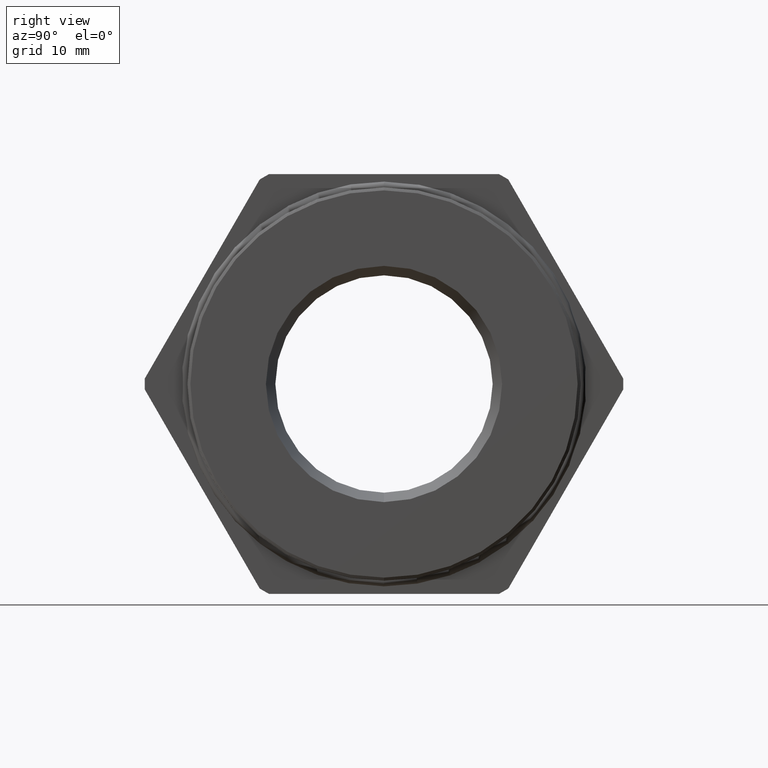
[diagram: clean part render]
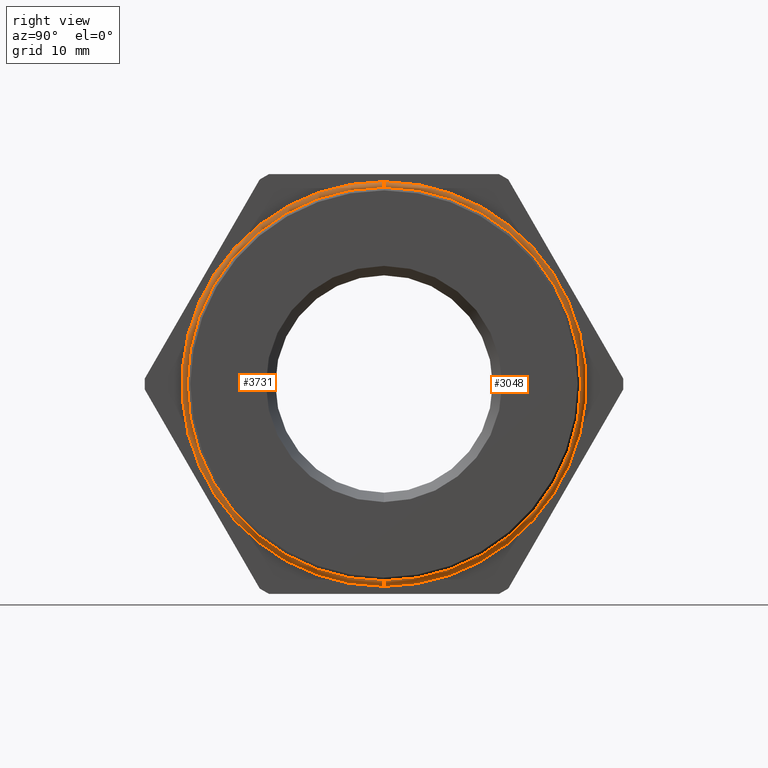
[diagram: same view with one multi-face feature highlighted, each face labeled with its STEP entity id]
A machine part, right view. The highlighted faces form ONE feature: a constant-radius fillet chain: 2 tangent blend faces with common blend radius 0.635 mm. The faces share edges in the B-rep.
Their STEP definitions:
[1] entity #3731 (Torus):
#563 = CARTESIAN_POINT ( 'NONE',  ( 0.5349999999999998100, 1.161548037695647600E-016, 0.9484759511921008200 ) ) ;
#644 = CIRCLE ( 'NONE', #705, 0.02500000000000014400 ) ;
#645 = CARTESIAN_POINT ( 'NONE',  ( 0.5655820920326152200, 1.119406062949036500E-016, -0.9140644173719398900 ) ) ;
#702 = DIRECTION ( 'NONE',  ( 0.0000000000000000000, 0.0000000000000000000, -1.000000000000000000 ) ) ;
#703 = DIRECTION ( 'NONE',  ( 0.0000000000000000000, -1.000000000000000000, 0.0000000000000000000 ) ) ;
#704 = CARTESIAN_POINT ( 'NONE',  ( 0.5429999999999998200, 0.0000000000000000000, -0.9247905126274468300 ) ) ;
#705 = AXIS2_PLACEMENT_3D ( 'NONE', #704, #703, #702 ) ;
#1391 = DIRECTION ( 'NONE',  ( 0.0000000000000000000, 0.0000000000000000000, -1.000000000000000000 ) ) ;
#1392 = DIRECTION ( 'NONE',  ( 1.000000000000000000, 0.0000000000000000000, 0.0000000000000000000 ) ) ;
#1393 = CARTESIAN_POINT ( 'NONE',  ( 0.5429999999999998200, 0.0000000000000000000, 0.0000000000000000000 ) ) ;
#1394 = AXIS2_PLACEMENT_3D ( 'NONE', #1393, #1392, #1391 ) ;
#1395 = TOROIDAL_SURFACE ( 'NONE', #1394, 0.9247905126274468300, 0.02500000000000011200 ) ;
#1396 = FACE_OUTER_BOUND ( 'NONE', #3730, .T. ) ;
#1984 = CARTESIAN_POINT ( 'NONE',  ( 0.5655820920326152200, 0.0000000000000000000, 0.9140644173719398900 ) ) ;
#1985 = DIRECTION ( 'NONE',  ( 0.0000000000000000000, 1.224646799147351000E-016, 1.000000000000000000 ) ) ;
#1986 = DIRECTION ( 'NONE',  ( 0.0000000000000000000, 1.000000000000000000, -1.224646799147353200E-016 ) ) ;
#1987 = CARTESIAN_POINT ( 'NONE',  ( 0.5429999999999998200, 1.132541741171042700E-016, 0.9247905126274468300 ) ) ;
#1988 = AXIS2_PLACEMENT_3D ( 'NONE', #1987, #1986, #1985 ) ;
#1989 = CIRCLE ( 'NONE', #1988, 0.02500000000000014400 ) ;
#1990 = CARTESIAN_POINT ( 'NONE',  ( 0.5349999999999998100, 0.0000000000000000000, -0.9484759511921008200 ) ) ;
#2426 = DIRECTION ( 'NONE',  ( 0.0000000000000000000, 0.0000000000000000000, 1.000000000000000000 ) ) ;
#2427 = DIRECTION ( 'NONE',  ( -1.000000000000000000, 0.0000000000000000000, 0.0000000000000000000 ) ) ;
#2428 = CARTESIAN_POINT ( 'NONE',  ( 0.5655820920326152200, 0.0000000000000000000, 0.0000000000000000000 ) ) ;
#2429 = AXIS2_PLACEMENT_3D ( 'NONE', #2428, #2427, #2426 ) ;
#2430 = CIRCLE ( 'NONE', #2429, 0.9140644173719398900 ) ;
#2513 = AXIS2_PLACEMENT_3D ( 'NONE', #2519, #2575, #2574 ) ;
#2514 = CIRCLE ( 'NONE', #2513, 0.9484759511921008200 ) ;
#2519 = CARTESIAN_POINT ( 'NONE',  ( 0.5349999999999998100, 0.0000000000000000000, 0.0000000000000000000 ) ) ;
#2574 = DIRECTION ( 'NONE',  ( 0.0000000000000000000, 0.0000000000000000000, 1.000000000000000000 ) ) ;
#2575 = DIRECTION ( 'NONE',  ( -1.000000000000000000, 0.0000000000000000000, 0.0000000000000000000 ) ) ;
#3052 = VERTEX_POINT ( 'NONE', #563 ) ;
#3108 = VERTEX_POINT ( 'NONE', #645 ) ;
#3110 = EDGE_CURVE ( 'NONE', #4094, #3108, #644, .T. ) ;
#3726 = ORIENTED_EDGE ( 'NONE', *, *, #4390, .F. ) ;
#3727 = ORIENTED_EDGE ( 'NONE', *, *, #3110, .T. ) ;
#3728 = ORIENTED_EDGE ( 'NONE', *, *, #4323, .T. ) ;
#3729 = ORIENTED_EDGE ( 'NONE', *, *, #4095, .F. ) ;
#3730 = EDGE_LOOP ( 'NONE', ( #3729, #3726, #3727, #3728 ) ) ;
#3731 = ADVANCED_FACE ( 'NONE', ( #1396 ), #1395, .T. ) ;
#4094 = VERTEX_POINT ( 'NONE', #1990 ) ;
#4095 = EDGE_CURVE ( 'NONE', #3052, #4098, #1989, .T. ) ;
#4098 = VERTEX_POINT ( 'NONE', #1984 ) ;
#4323 = EDGE_CURVE ( 'NONE', #3108, #4098, #2430, .T. ) ;
#4390 = EDGE_CURVE ( 'NONE', #4094, #3052, #2514, .T. ) ;
[2] entity #3048 (Torus):
#563 = CARTESIAN_POINT ( 'NONE',  ( 0.5349999999999998100, 1.161548037695647600E-016, 0.9484759511921008200 ) ) ;
#564 = DIRECTION ( 'NONE',  ( 0.0000000000000000000, 0.0000000000000000000, 1.000000000000000000 ) ) ;
#565 = DIRECTION ( 'NONE',  ( -1.000000000000000000, 0.0000000000000000000, 0.0000000000000000000 ) ) ;
#566 = CARTESIAN_POINT ( 'NONE',  ( 0.5349999999999998100, 0.0000000000000000000, 0.0000000000000000000 ) ) ;
#567 = AXIS2_PLACEMENT_3D ( 'NONE', #566, #565, #564 ) ;
#568 = CIRCLE ( 'NONE', #567, 0.9484759511921008200 ) ;
#569 = DIRECTION ( 'NONE',  ( 0.0000000000000000000, 0.0000000000000000000, -1.000000000000000000 ) ) ;
#570 = DIRECTION ( 'NONE',  ( 1.000000000000000000, 0.0000000000000000000, 0.0000000000000000000 ) ) ;
#571 = AXIS2_PLACEMENT_3D ( 'NONE', #573, #570, #569 ) ;
#572 = TOROIDAL_SURFACE ( 'NONE', #571, 0.9247905126274468300, 0.02500000000000011200 ) ;
#573 = CARTESIAN_POINT ( 'NONE',  ( 0.5429999999999998200, 0.0000000000000000000, 0.0000000000000000000 ) ) ;
#574 = FACE_OUTER_BOUND ( 'NONE', #3049, .T. ) ;
#644 = CIRCLE ( 'NONE', #705, 0.02500000000000014400 ) ;
#645 = CARTESIAN_POINT ( 'NONE',  ( 0.5655820920326152200, 1.119406062949036500E-016, -0.9140644173719398900 ) ) ;
#646 = DIRECTION ( 'NONE',  ( 0.0000000000000000000, 0.0000000000000000000, 1.000000000000000000 ) ) ;
#647 = DIRECTION ( 'NONE',  ( -1.000000000000000000, 0.0000000000000000000, 0.0000000000000000000 ) ) ;
#648 = AXIS2_PLACEMENT_3D ( 'NONE', #655, #647, #646 ) ;
#649 = CIRCLE ( 'NONE', #648, 0.9140644173719398900 ) ;
#655 = CARTESIAN_POINT ( 'NONE',  ( 0.5655820920326152200, 0.0000000000000000000, 0.0000000000000000000 ) ) ;
#702 = DIRECTION ( 'NONE',  ( 0.0000000000000000000, 0.0000000000000000000, -1.000000000000000000 ) ) ;
#703 = DIRECTION ( 'NONE',  ( 0.0000000000000000000, -1.000000000000000000, 0.0000000000000000000 ) ) ;
#704 = CARTESIAN_POINT ( 'NONE',  ( 0.5429999999999998200, 0.0000000000000000000, -0.9247905126274468300 ) ) ;
#705 = AXIS2_PLACEMENT_3D ( 'NONE', #704, #703, #702 ) ;
#1984 = CARTESIAN_POINT ( 'NONE',  ( 0.5655820920326152200, 0.0000000000000000000, 0.9140644173719398900 ) ) ;
#1985 = DIRECTION ( 'NONE',  ( 0.0000000000000000000, 1.224646799147351000E-016, 1.000000000000000000 ) ) ;
#1986 = DIRECTION ( 'NONE',  ( 0.0000000000000000000, 1.000000000000000000, -1.224646799147353200E-016 ) ) ;
#1987 = CARTESIAN_POINT ( 'NONE',  ( 0.5429999999999998200, 1.132541741171042700E-016, 0.9247905126274468300 ) ) ;
#1988 = AXIS2_PLACEMENT_3D ( 'NONE', #1987, #1986, #1985 ) ;
#1989 = CIRCLE ( 'NONE', #1988, 0.02500000000000014400 ) ;
#1990 = CARTESIAN_POINT ( 'NONE',  ( 0.5349999999999998100, 0.0000000000000000000, -0.9484759511921008200 ) ) ;
#3048 = ADVANCED_FACE ( 'NONE', ( #574 ), #572, .T. ) ;
#3049 = EDGE_LOOP ( 'NONE', ( #3050, #4096, #3106, #3109 ) ) ;
#3050 = ORIENTED_EDGE ( 'NONE', *, *, #3051, .F. ) ;
#3051 = EDGE_CURVE ( 'NONE', #3052, #4094, #568, .T. ) ;
#3052 = VERTEX_POINT ( 'NONE', #563 ) ;
#3106 = ORIENTED_EDGE ( 'NONE', *, *, #3107, .T. ) ;
#3107 = EDGE_CURVE ( 'NONE', #4098, #3108, #649, .T. ) ;
#3108 = VERTEX_POINT ( 'NONE', #645 ) ;
#3109 = ORIENTED_EDGE ( 'NONE', *, *, #3110, .F. ) ;
#3110 = EDGE_CURVE ( 'NONE', #4094, #3108, #644, .T. ) ;
#4094 = VERTEX_POINT ( 'NONE', #1990 ) ;
#4095 = EDGE_CURVE ( 'NONE', #3052, #4098, #1989, .T. ) ;
#4096 = ORIENTED_EDGE ( 'NONE', *, *, #4095, .T. ) ;
#4098 = VERTEX_POINT ( 'NONE', #1984 ) ;